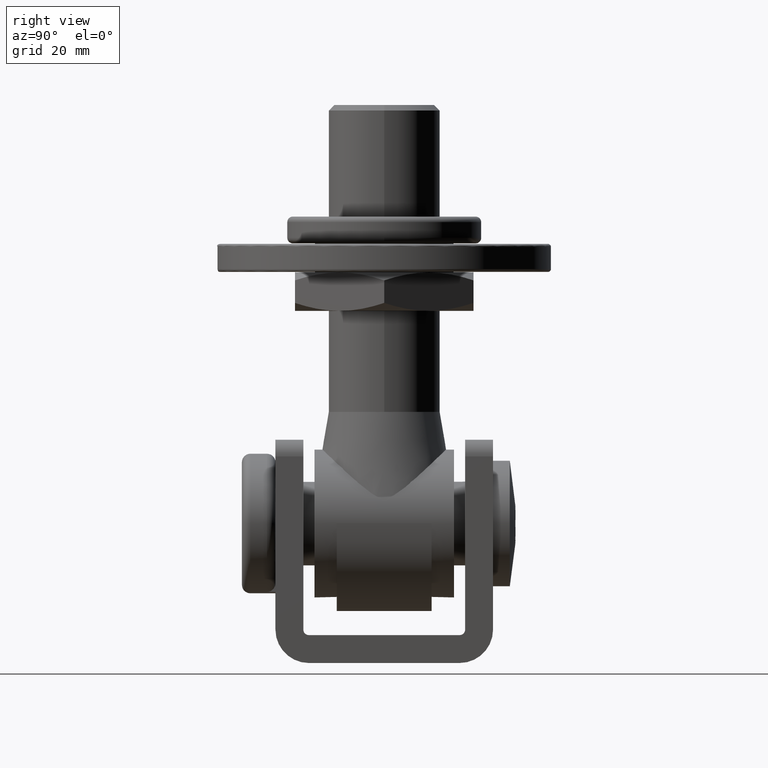
[diagram: clean part render]
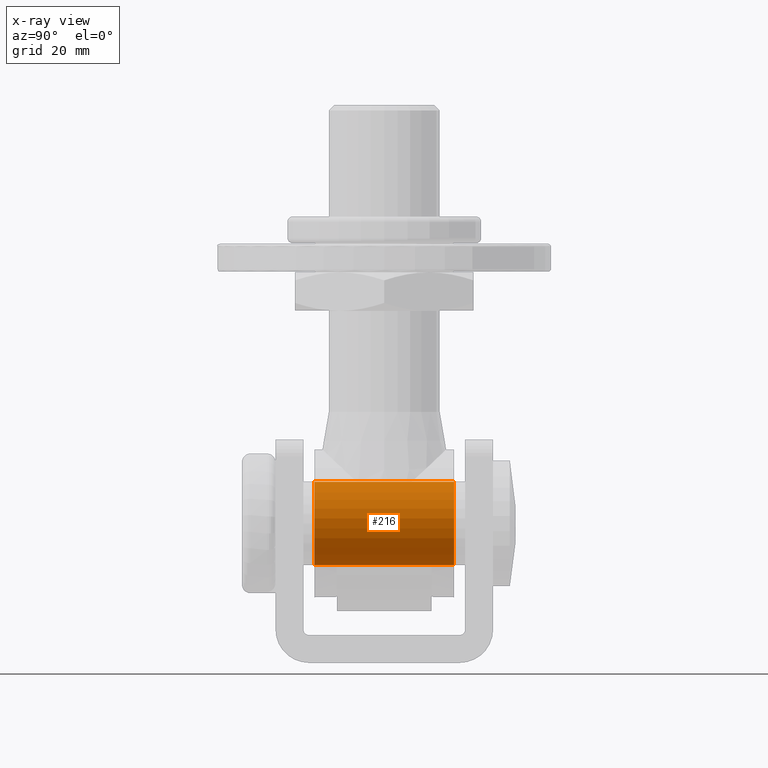
[diagram: x-ray — body ghosted, one internal face saturated and labeled with its STEP entity id]
A machine part, right view, then the same camera in x-ray: the body is ghosted and one INTERNAL B-rep face — a face not visible from any outside direction — is saturated and labeled: STEP entity #216.
In plain terms, the highlighted cylindrical surface (bore or boss wall) has radius 7.45 mm, axis along (-0, -1, -0).
Its self-contained STEP definition (entity closure, byte-faithful):
#147 = DIRECTION ( 'NONE',  ( 0.000000000000000000, 1.000000000000000000, -0.000000000000000000 ) ) ;
#216 = ADVANCED_FACE ( 'NONE', ( #5434, #11304 ), #12788, .F. ) ;
#300 = CIRCLE ( 'NONE', #4216, 7.450000000000000178 ) ;
#1050 = VERTEX_POINT ( 'NONE', #12444 ) ;
#1528 = ORIENTED_EDGE ( 'NONE', *, *, #7788, .T. ) ;
#4059 = DIRECTION ( 'NONE',  ( -0.000000000000000000, -1.000000000000000000, -0.000000000000000000 ) ) ;
#4216 = AXIS2_PLACEMENT_3D ( 'NONE', #4893, #147, #13434 ) ;
#4893 = CARTESIAN_POINT ( 'NONE',  ( 0.000000000000000000, -12.50000000000000000, 0.000000000000000000 ) ) ;
#5167 = CARTESIAN_POINT ( 'NONE',  ( 0.000000000000000000, 12.50000000000000000, 7.450000000000000178 ) ) ;
#5434 = FACE_OUTER_BOUND ( 'NONE', #10554, .T. ) ;
#6784 = DIRECTION ( 'NONE',  ( 0.000000000000000000, 1.000000000000000000, -0.000000000000000000 ) ) ;
#7363 = AXIS2_PLACEMENT_3D ( 'NONE', #9271, #6784, #10294 ) ;
#7788 = EDGE_CURVE ( 'NONE', #15256, #15256, #13914, .T. ) ;
#8951 = EDGE_LOOP ( 'NONE', ( #10833 ) ) ;
#8978 = AXIS2_PLACEMENT_3D ( 'NONE', #11317, #4059, #12704 ) ;
#9271 = CARTESIAN_POINT ( 'NONE',  ( 0.000000000000000000, 12.50000000000000000, 0.000000000000000000 ) ) ;
#10294 = DIRECTION ( 'NONE',  ( 0.000000000000000000, 0.000000000000000000, 1.000000000000000000 ) ) ;
#10303 = EDGE_CURVE ( 'NONE', #1050, #1050, #300, .T. ) ;
#10554 = EDGE_LOOP ( 'NONE', ( #1528 ) ) ;
#10833 = ORIENTED_EDGE ( 'NONE', *, *, #10303, .F. ) ;
#11304 = FACE_OUTER_BOUND ( 'NONE', #8951, .T. ) ;
#11317 = CARTESIAN_POINT ( 'NONE',  ( 0.000000000000000000, 12.50000000000000000, 0.000000000000000000 ) ) ;
#12444 = CARTESIAN_POINT ( 'NONE',  ( 0.000000000000000000, -12.50000000000000000, 7.450000000000000178 ) ) ;
#12704 = DIRECTION ( 'NONE',  ( 0.000000000000000000, 0.000000000000000000, -1.000000000000000000 ) ) ;
#12788 = CYLINDRICAL_SURFACE ( 'NONE', #8978, 7.450000000000000178 ) ;
#13434 = DIRECTION ( 'NONE',  ( 0.000000000000000000, 0.000000000000000000, 1.000000000000000000 ) ) ;
#13914 = CIRCLE ( 'NONE', #7363, 7.450000000000000178 ) ;
#15256 = VERTEX_POINT ( 'NONE', #5167 ) ;